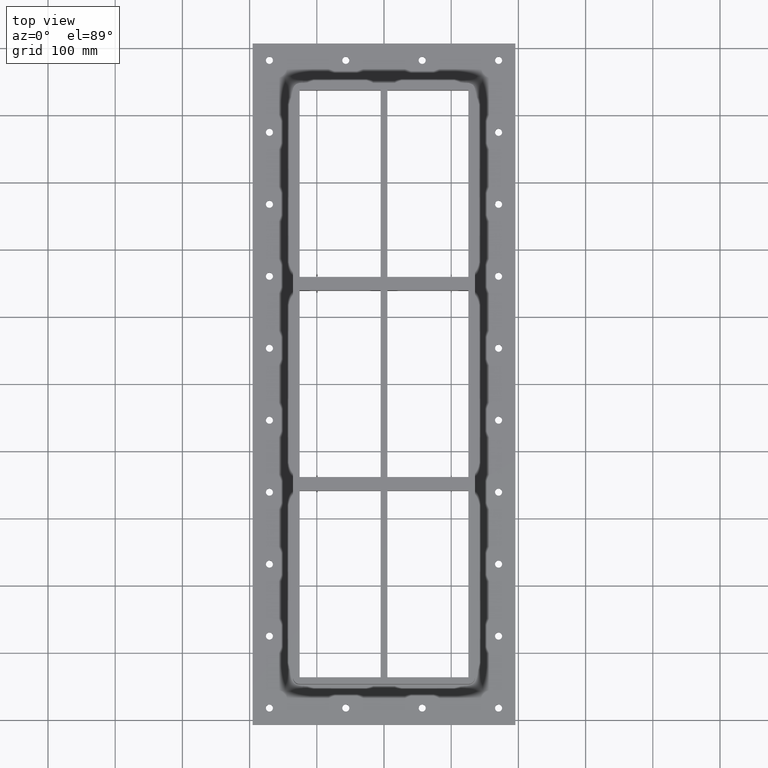
[diagram: clean part render]
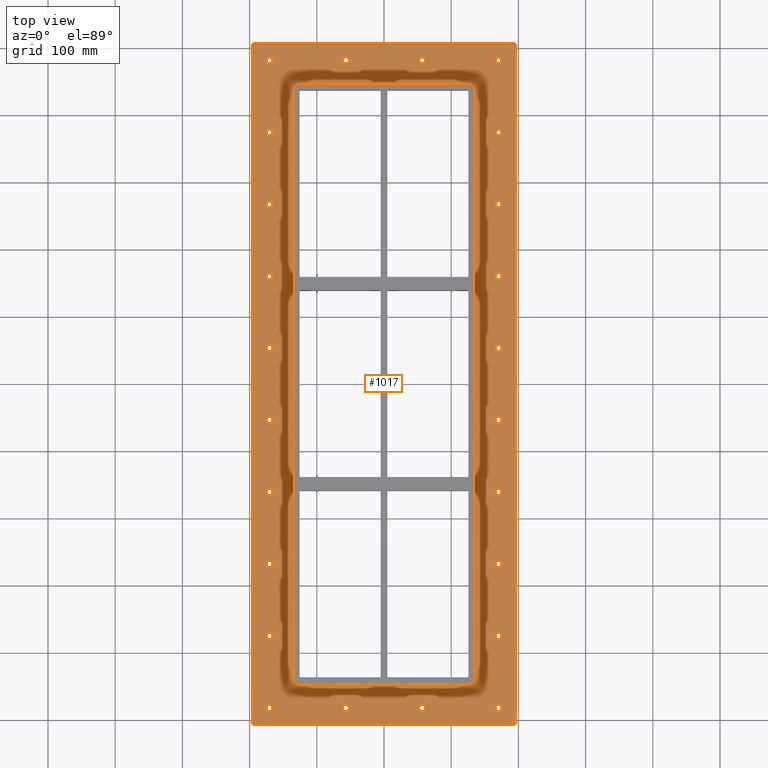
[diagram: same view with one face highlighted and labeled with its STEP entity id]
A machine part, top view. The second image highlights one B-rep face of the part: STEP entity #1017.
In plain terms, the highlighted planar face has unit normal (0, 0, 1).
Its self-contained STEP definition (entity closure, byte-faithful):
#84=CARTESIAN_POINT('',(-51.583333333333279,-482.0,-17.0));
#85=VERTEX_POINT('',#84);
#86=CARTESIAN_POINT('',(-56.833333333333265,-482.0,-17.000000000000028));
#87=DIRECTION('',(0.0,0.0,-1.0));
#88=DIRECTION('',(1.0,0.0,0.0));
#89=AXIS2_PLACEMENT_3D('',#86,#87,#88);
#90=CIRCLE('',#89,5.25);
#91=EDGE_CURVE('',#85,#85,#90,.T.);
#112=CARTESIAN_POINT('',(62.083333333333393,-482.0,-17.0));
#113=VERTEX_POINT('',#112);
#114=CARTESIAN_POINT('',(56.833333333333407,-482.0,-17.000000000000028));
#115=DIRECTION('',(0.0,0.0,-1.0));
#116=DIRECTION('',(1.0,0.0,0.0));
#117=AXIS2_PLACEMENT_3D('',#114,#115,#116);
#118=CIRCLE('',#117,5.25);
#119=EDGE_CURVE('',#113,#113,#118,.T.);
#140=CARTESIAN_POINT('',(62.08333333333325,482.0,-17.0));
#141=VERTEX_POINT('',#140);
#142=CARTESIAN_POINT('',(56.833333333333265,482.0,-17.000000000000028));
#143=DIRECTION('',(0.0,0.0,-1.0));
#144=DIRECTION('',(1.0,0.0,0.0));
#145=AXIS2_PLACEMENT_3D('',#142,#143,#144);
#146=CIRCLE('',#145,5.25);
#147=EDGE_CURVE('',#141,#141,#146,.T.);
#168=CARTESIAN_POINT('',(-51.583333333333421,482.0,-17.0));
#169=VERTEX_POINT('',#168);
#170=CARTESIAN_POINT('',(-56.833333333333407,482.0,-17.000000000000028));
#171=DIRECTION('',(0.0,0.0,-1.0));
#172=DIRECTION('',(1.0,0.0,0.0));
#173=AXIS2_PLACEMENT_3D('',#170,#171,#172);
#174=CIRCLE('',#173,5.25);
#175=EDGE_CURVE('',#169,#169,#174,.T.);
#196=CARTESIAN_POINT('',(175.75000000000003,-374.88888888888891,-17.0));
#197=VERTEX_POINT('',#196);
#198=CARTESIAN_POINT('',(170.50000000000006,-374.88888888888891,-17.000000000000028));
#199=DIRECTION('',(0.0,0.0,-1.0));
#200=DIRECTION('',(1.0,0.0,0.0));
#201=AXIS2_PLACEMENT_3D('',#198,#199,#200);
#202=CIRCLE('',#201,5.25);
#203=EDGE_CURVE('',#197,#197,#202,.T.);
#224=CARTESIAN_POINT('',(175.75000000000003,-267.77777777777789,-17.0));
#225=VERTEX_POINT('',#224);
#226=CARTESIAN_POINT('',(170.50000000000006,-267.77777777777789,-17.000000000000028));
#227=DIRECTION('',(0.0,0.0,-1.0));
#228=DIRECTION('',(1.0,0.0,0.0));
#229=AXIS2_PLACEMENT_3D('',#226,#227,#228);
#230=CIRCLE('',#229,5.25);
#231=EDGE_CURVE('',#225,#225,#230,.T.);
#252=CARTESIAN_POINT('',(175.75,-160.6666666666668,-17.0));
#253=VERTEX_POINT('',#252);
#254=CARTESIAN_POINT('',(170.5,-160.6666666666668,-17.000000000000028));
#255=DIRECTION('',(0.0,0.0,-1.0));
#256=DIRECTION('',(1.0,0.0,0.0));
#257=AXIS2_PLACEMENT_3D('',#254,#255,#256);
#258=CIRCLE('',#257,5.25);
#259=EDGE_CURVE('',#253,#253,#258,.T.);
#280=CARTESIAN_POINT('',(175.75,-53.555555555555578,-17.0));
#281=VERTEX_POINT('',#280);
#282=CARTESIAN_POINT('',(170.5,-53.555555555555578,-17.000000000000028));
#283=DIRECTION('',(0.0,0.0,-1.0));
#284=DIRECTION('',(1.0,0.0,0.0));
#285=AXIS2_PLACEMENT_3D('',#282,#283,#284);
#286=CIRCLE('',#285,5.25);
#287=EDGE_CURVE('',#281,#281,#286,.T.);
#308=CARTESIAN_POINT('',(175.74999999999994,53.555555555555507,-17.0));
#309=VERTEX_POINT('',#308);
#310=CARTESIAN_POINT('',(170.49999999999997,53.555555555555507,-17.000000000000028));
#311=DIRECTION('',(0.0,0.0,-1.0));
#312=DIRECTION('',(1.0,0.0,0.0));
#313=AXIS2_PLACEMENT_3D('',#310,#311,#312);
#314=CIRCLE('',#313,5.25);
#315=EDGE_CURVE('',#309,#309,#314,.T.);
#336=CARTESIAN_POINT('',(175.74999999999994,160.66666666666663,-17.0));
#337=VERTEX_POINT('',#336);
#338=CARTESIAN_POINT('',(170.49999999999997,160.66666666666663,-17.000000000000028));
#339=DIRECTION('',(0.0,0.0,-1.0));
#340=DIRECTION('',(1.0,0.0,0.0));
#341=AXIS2_PLACEMENT_3D('',#338,#339,#340);
#342=CIRCLE('',#341,5.25);
#343=EDGE_CURVE('',#337,#337,#342,.T.);
#364=CARTESIAN_POINT('',(175.74999999999991,267.77777777777783,-17.0));
#365=VERTEX_POINT('',#364);
#366=CARTESIAN_POINT('',(170.49999999999994,267.77777777777783,-17.000000000000028));
#367=DIRECTION('',(0.0,0.0,-1.0));
#368=DIRECTION('',(1.0,0.0,0.0));
#369=AXIS2_PLACEMENT_3D('',#366,#367,#368);
#370=CIRCLE('',#369,5.25);
#371=EDGE_CURVE('',#365,#365,#370,.T.);
#392=CARTESIAN_POINT('',(175.74999999999991,374.88888888888891,-17.0));
#393=VERTEX_POINT('',#392);
#394=CARTESIAN_POINT('',(170.49999999999994,374.88888888888891,-17.000000000000028));
#395=DIRECTION('',(0.0,0.0,-1.0));
#396=DIRECTION('',(1.0,0.0,0.0));
#397=AXIS2_PLACEMENT_3D('',#394,#395,#396);
#398=CIRCLE('',#397,5.25);
#399=EDGE_CURVE('',#393,#393,#398,.T.);
#420=CARTESIAN_POINT('',(-165.25000000000006,374.88888888888891,-17.0));
#421=VERTEX_POINT('',#420);
#422=CARTESIAN_POINT('',(-170.50000000000006,374.88888888888891,-17.000000000000028));
#423=DIRECTION('',(0.0,0.0,-1.0));
#424=DIRECTION('',(1.0,0.0,0.0));
#425=AXIS2_PLACEMENT_3D('',#422,#423,#424);
#426=CIRCLE('',#425,5.25);
#427=EDGE_CURVE('',#421,#421,#426,.T.);
#448=CARTESIAN_POINT('',(-165.25000000000006,267.77777777777789,-17.0));
#449=VERTEX_POINT('',#448);
#450=CARTESIAN_POINT('',(-170.50000000000006,267.77777777777789,-17.000000000000028));
#451=DIRECTION('',(0.0,0.0,-1.0));
#452=DIRECTION('',(1.0,0.0,0.0));
#453=AXIS2_PLACEMENT_3D('',#450,#451,#452);
#454=CIRCLE('',#453,5.25);
#455=EDGE_CURVE('',#449,#449,#454,.T.);
#476=CARTESIAN_POINT('',(-165.25000000000003,160.6666666666668,-17.0));
#477=VERTEX_POINT('',#476);
#478=CARTESIAN_POINT('',(-170.5,160.6666666666668,-17.000000000000028));
#479=DIRECTION('',(0.0,0.0,-1.0));
#480=DIRECTION('',(1.0,0.0,0.0));
#481=AXIS2_PLACEMENT_3D('',#478,#479,#480);
#482=CIRCLE('',#481,5.25);
#483=EDGE_CURVE('',#477,#477,#482,.T.);
#504=CARTESIAN_POINT('',(-165.25000000000003,53.555555555555578,-17.0));
#505=VERTEX_POINT('',#504);
#506=CARTESIAN_POINT('',(-170.5,53.555555555555578,-17.000000000000028));
#507=DIRECTION('',(0.0,0.0,-1.0));
#508=DIRECTION('',(1.0,0.0,0.0));
#509=AXIS2_PLACEMENT_3D('',#506,#507,#508);
#510=CIRCLE('',#509,5.25);
#511=EDGE_CURVE('',#505,#505,#510,.T.);
#532=CARTESIAN_POINT('',(-165.25,-53.555555555555507,-17.0));
#533=VERTEX_POINT('',#532);
#534=CARTESIAN_POINT('',(-170.49999999999997,-53.555555555555507,-17.000000000000028));
#535=DIRECTION('',(0.0,0.0,-1.0));
#536=DIRECTION('',(1.0,0.0,0.0));
#537=AXIS2_PLACEMENT_3D('',#534,#535,#536);
#538=CIRCLE('',#537,5.25);
#539=EDGE_CURVE('',#533,#533,#538,.T.);
#560=CARTESIAN_POINT('',(-165.25,-160.66666666666663,-17.0));
#561=VERTEX_POINT('',#560);
#562=CARTESIAN_POINT('',(-170.49999999999997,-160.66666666666663,-17.000000000000028));
#563=DIRECTION('',(0.0,0.0,-1.0));
#564=DIRECTION('',(1.0,0.0,0.0));
#565=AXIS2_PLACEMENT_3D('',#562,#563,#564);
#566=CIRCLE('',#565,5.25);
#567=EDGE_CURVE('',#561,#561,#566,.T.);
#588=CARTESIAN_POINT('',(-165.24999999999994,-267.77777777777783,-17.0));
#589=VERTEX_POINT('',#588);
#590=CARTESIAN_POINT('',(-170.49999999999994,-267.77777777777783,-17.000000000000028));
#591=DIRECTION('',(0.0,0.0,-1.0));
#592=DIRECTION('',(1.0,0.0,0.0));
#593=AXIS2_PLACEMENT_3D('',#590,#591,#592);
#594=CIRCLE('',#593,5.25);
#595=EDGE_CURVE('',#589,#589,#594,.T.);
#616=CARTESIAN_POINT('',(-165.24999999999994,-374.88888888888891,-17.0));
#617=VERTEX_POINT('',#616);
#618=CARTESIAN_POINT('',(-170.49999999999994,-374.88888888888891,-17.000000000000028));
#619=DIRECTION('',(0.0,0.0,-1.0));
#620=DIRECTION('',(1.0,0.0,0.0));
#621=AXIS2_PLACEMENT_3D('',#618,#619,#620);
#622=CIRCLE('',#621,5.25);
#623=EDGE_CURVE('',#617,#617,#622,.T.);
#644=CARTESIAN_POINT('',(-165.25000000000009,482.0,-17.0));
#645=VERTEX_POINT('',#644);
#646=CARTESIAN_POINT('',(-170.50000000000009,482.0,-17.000000000000028));
#647=DIRECTION('',(0.0,0.0,-1.0));
#648=DIRECTION('',(1.0,0.0,0.0));
#649=AXIS2_PLACEMENT_3D('',#646,#647,#648);
#650=CIRCLE('',#649,5.25);
#651=EDGE_CURVE('',#645,#645,#650,.T.);
#672=CARTESIAN_POINT('',(175.74999999999991,482.0,-17.0));
#673=VERTEX_POINT('',#672);
#674=CARTESIAN_POINT('',(170.49999999999994,482.0,-17.000000000000028));
#675=DIRECTION('',(0.0,0.0,-1.0));
#676=DIRECTION('',(1.0,0.0,0.0));
#677=AXIS2_PLACEMENT_3D('',#674,#675,#676);
#678=CIRCLE('',#677,5.25);
#679=EDGE_CURVE('',#673,#673,#678,.T.);
#700=CARTESIAN_POINT('',(175.75000000000006,-482.0,-17.0));
#701=VERTEX_POINT('',#700);
#702=CARTESIAN_POINT('',(170.50000000000009,-482.0,-17.000000000000028));
#703=DIRECTION('',(0.0,0.0,-1.0));
#704=DIRECTION('',(1.0,0.0,0.0));
#705=AXIS2_PLACEMENT_3D('',#702,#703,#704);
#706=CIRCLE('',#705,5.25);
#707=EDGE_CURVE('',#701,#701,#706,.T.);
#728=CARTESIAN_POINT('',(-165.24999999999994,-482.0,-17.0));
#729=VERTEX_POINT('',#728);
#730=CARTESIAN_POINT('',(-170.49999999999994,-482.0,-17.000000000000028));
#731=DIRECTION('',(0.0,0.0,-1.0));
#732=DIRECTION('',(1.0,0.0,0.0));
#733=AXIS2_PLACEMENT_3D('',#730,#731,#732);
#734=CIRCLE('',#733,5.25);
#735=EDGE_CURVE('',#729,#729,#734,.T.);
#755=CARTESIAN_POINT('',(-195.49999999999994,-507.0,-17.0));
#756=VERTEX_POINT('',#755);
#763=CARTESIAN_POINT('',(-195.50000000000009,507.0,-17.0));
#764=VERTEX_POINT('',#763);
#765=CARTESIAN_POINT('',(-195.50000000000009,507.0,-17.0));
#766=DIRECTION('',(0.0,-1.0,0.0));
#767=VECTOR('',#766,1014.0);
#768=LINE('',#765,#767);
#769=EDGE_CURVE('',#764,#756,#768,.T.);
#794=CARTESIAN_POINT('',(195.49999999999994,507.0,-17.0));
#795=VERTEX_POINT('',#794);
#796=CARTESIAN_POINT('',(195.49999999999991,507.0,-17.0));
#797=DIRECTION('',(-1.0,0.0,0.0));
#798=VECTOR('',#797,391.0);
#799=LINE('',#796,#798);
#800=EDGE_CURVE('',#795,#764,#799,.T.);
#825=CARTESIAN_POINT('',(195.50000000000009,-507.0,-17.0));
#826=VERTEX_POINT('',#825);
#827=CARTESIAN_POINT('',(195.50000000000009,-507.0,-17.0));
#828=DIRECTION('',(0.0,1.0,0.0));
#829=VECTOR('',#828,1014.0);
#830=LINE('',#827,#829);
#831=EDGE_CURVE('',#826,#795,#830,.T.);
#854=CARTESIAN_POINT('',(-195.49999999999991,-507.0,-17.0));
#855=DIRECTION('',(1.0,0.0,0.0));
#856=VECTOR('',#855,391.0);
#857=LINE('',#854,#856);
#858=EDGE_CURVE('',#756,#826,#857,.T.);
#864=CARTESIAN_POINT('',(0.0,0.0,-17.0));
#865=DIRECTION('',(0.0,0.0,1.0));
#866=DIRECTION('',(1.0,0.0,0.0));
#867=AXIS2_PLACEMENT_3D('',#864,#865,#866);
#868=PLANE('',#867);
#869=ORIENTED_EDGE('',*,*,#858,.T.);
#870=ORIENTED_EDGE('',*,*,#831,.T.);
#871=ORIENTED_EDGE('',*,*,#800,.T.);
#872=ORIENTED_EDGE('',*,*,#769,.T.);
#873=EDGE_LOOP('',(#869,#870,#871,#872));
#874=FACE_OUTER_BOUND('',#873,.T.);
#875=ORIENTED_EDGE('',*,*,#91,.T.);
#876=EDGE_LOOP('',(#875));
#877=FACE_BOUND('',#876,.T.);
#878=ORIENTED_EDGE('',*,*,#119,.T.);
#879=EDGE_LOOP('',(#878));
#880=FACE_BOUND('',#879,.T.);
#881=ORIENTED_EDGE('',*,*,#147,.T.);
#882=EDGE_LOOP('',(#881));
#883=FACE_BOUND('',#882,.T.);
#884=ORIENTED_EDGE('',*,*,#175,.T.);
#885=EDGE_LOOP('',(#884));
#886=FACE_BOUND('',#885,.T.);
#887=ORIENTED_EDGE('',*,*,#203,.T.);
#888=EDGE_LOOP('',(#887));
#889=FACE_BOUND('',#888,.T.);
#890=ORIENTED_EDGE('',*,*,#231,.T.);
#891=EDGE_LOOP('',(#890));
#892=FACE_BOUND('',#891,.T.);
#893=ORIENTED_EDGE('',*,*,#259,.T.);
#894=EDGE_LOOP('',(#893));
#895=FACE_BOUND('',#894,.T.);
#896=ORIENTED_EDGE('',*,*,#287,.T.);
#897=EDGE_LOOP('',(#896));
#898=FACE_BOUND('',#897,.T.);
#899=ORIENTED_EDGE('',*,*,#315,.T.);
#900=EDGE_LOOP('',(#899));
#901=FACE_BOUND('',#900,.T.);
#902=ORIENTED_EDGE('',*,*,#343,.T.);
#903=EDGE_LOOP('',(#902));
#904=FACE_BOUND('',#903,.T.);
#905=ORIENTED_EDGE('',*,*,#371,.T.);
#906=EDGE_LOOP('',(#905));
#907=FACE_BOUND('',#906,.T.);
#908=ORIENTED_EDGE('',*,*,#399,.T.);
#909=EDGE_LOOP('',(#908));
#910=FACE_BOUND('',#909,.T.);
#911=ORIENTED_EDGE('',*,*,#427,.T.);
#912=EDGE_LOOP('',(#911));
#913=FACE_BOUND('',#912,.T.);
#914=ORIENTED_EDGE('',*,*,#455,.T.);
#915=EDGE_LOOP('',(#914));
#916=FACE_BOUND('',#915,.T.);
#917=ORIENTED_EDGE('',*,*,#483,.T.);
#918=EDGE_LOOP('',(#917));
#919=FACE_BOUND('',#918,.T.);
#920=ORIENTED_EDGE('',*,*,#511,.T.);
#921=EDGE_LOOP('',(#920));
#922=FACE_BOUND('',#921,.T.);
#923=ORIENTED_EDGE('',*,*,#539,.T.);
#924=EDGE_LOOP('',(#923));
#925=FACE_BOUND('',#924,.T.);
#926=ORIENTED_EDGE('',*,*,#567,.T.);
#927=EDGE_LOOP('',(#926));
#928=FACE_BOUND('',#927,.T.);
#929=ORIENTED_EDGE('',*,*,#595,.T.);
#930=EDGE_LOOP('',(#929));
#931=FACE_BOUND('',#930,.T.);
#932=ORIENTED_EDGE('',*,*,#623,.T.);
#933=EDGE_LOOP('',(#932));
#934=FACE_BOUND('',#933,.T.);
#935=ORIENTED_EDGE('',*,*,#651,.T.);
#936=EDGE_LOOP('',(#935));
#937=FACE_BOUND('',#936,.T.);
#938=ORIENTED_EDGE('',*,*,#679,.T.);
#939=EDGE_LOOP('',(#938));
#940=FACE_BOUND('',#939,.T.);
#941=ORIENTED_EDGE('',*,*,#707,.T.);
#942=EDGE_LOOP('',(#941));
#943=FACE_BOUND('',#942,.T.);
#944=ORIENTED_EDGE('',*,*,#735,.T.);
#945=EDGE_LOOP('',(#944));
#946=FACE_BOUND('',#945,.T.);
#947=CARTESIAN_POINT('',(135.49999999999994,437.0,-17.0));
#948=VERTEX_POINT('',#947);
#949=CARTESIAN_POINT('',(125.49999999999997,447.0,-17.0));
#950=VERTEX_POINT('',#949);
#951=CARTESIAN_POINT('',(125.4999999999999,437.00000000000011,-17.0));
#952=DIRECTION('',(0.0,0.0,1.0));
#953=DIRECTION('',(0.707106781186547,0.707106781186547,0.0));
#954=AXIS2_PLACEMENT_3D('',#951,#952,#953);
#955=CIRCLE('',#954,9.999999999999998);
#956=EDGE_CURVE('',#948,#950,#955,.T.);
#957=ORIENTED_EDGE('',*,*,#956,.F.);
#958=CARTESIAN_POINT('',(135.50000000000009,-437.0,-17.0));
#959=VERTEX_POINT('',#958);
#960=CARTESIAN_POINT('',(135.50000000000003,-437.0,-17.0));
#961=DIRECTION('',(0.0,1.0,0.0));
#962=VECTOR('',#961,874.0);
#963=LINE('',#960,#962);
#964=EDGE_CURVE('',#959,#948,#963,.T.);
#965=ORIENTED_EDGE('',*,*,#964,.F.);
#966=CARTESIAN_POINT('',(125.50000000000009,-447.0,-17.0));
#967=VERTEX_POINT('',#966);
#968=CARTESIAN_POINT('',(125.50000000000004,-436.99999999999989,-17.0));
#969=DIRECTION('',(0.0,0.0,1.0));
#970=DIRECTION('',(0.707106781186547,-0.707106781186547,0.0));
#971=AXIS2_PLACEMENT_3D('',#968,#969,#970);
#972=CIRCLE('',#971,9.999999999999998);
#973=EDGE_CURVE('',#967,#959,#972,.T.);
#974=ORIENTED_EDGE('',*,*,#973,.F.);
#975=CARTESIAN_POINT('',(-125.49999999999997,-447.0,-17.0));
#976=VERTEX_POINT('',#975);
#977=CARTESIAN_POINT('',(-125.49999999999997,-446.99999999999989,-17.0));
#978=DIRECTION('',(1.0,0.0,0.0));
#979=VECTOR('',#978,251.00000000000006);
#980=LINE('',#977,#979);
#981=EDGE_CURVE('',#976,#967,#980,.T.);
#982=ORIENTED_EDGE('',*,*,#981,.F.);
#983=CARTESIAN_POINT('',(-135.49999999999994,-437.0,-17.0));
#984=VERTEX_POINT('',#983);
#985=CARTESIAN_POINT('',(-125.49999999999983,-436.99999999999989,-17.0));
#986=DIRECTION('',(0.0,0.0,1.0));
#987=DIRECTION('',(-0.707106781186547,-0.707106781186547,0.0));
#988=AXIS2_PLACEMENT_3D('',#985,#986,#987);
#989=CIRCLE('',#988,9.999999999999998);
#990=EDGE_CURVE('',#984,#976,#989,.T.);
#991=ORIENTED_EDGE('',*,*,#990,.F.);
#992=CARTESIAN_POINT('',(-135.50000000000009,437.0,-17.0));
#993=VERTEX_POINT('',#992);
#994=CARTESIAN_POINT('',(-135.50000000000011,437.0,-17.0));
#995=DIRECTION('',(0.0,-1.0,0.0));
#996=VECTOR('',#995,874.00000000000011);
#997=LINE('',#994,#996);
#998=EDGE_CURVE('',#993,#984,#997,.T.);
#999=ORIENTED_EDGE('',*,*,#998,.F.);
#1000=CARTESIAN_POINT('',(-125.50000000000004,447.0,-17.0));
#1001=VERTEX_POINT('',#1000);
#1002=CARTESIAN_POINT('',(-125.50000000000011,437.00000000000011,-17.0));
#1003=DIRECTION('',(0.0,0.0,1.0));
#1004=DIRECTION('',(-0.707106781186547,0.707106781186547,0.0));
#1005=AXIS2_PLACEMENT_3D('',#1002,#1003,#1004);
#1006=CIRCLE('',#1005,9.999999999999998);
#1007=EDGE_CURVE('',#1001,#993,#1006,.T.);
#1008=ORIENTED_EDGE('',*,*,#1007,.F.);
#1009=CARTESIAN_POINT('',(125.49999999999997,447.00000000000011,-17.0));
#1010=DIRECTION('',(-1.0,0.0,0.0));
#1011=VECTOR('',#1010,251.00000000000003);
#1012=LINE('',#1009,#1011);
#1013=EDGE_CURVE('',#950,#1001,#1012,.T.);
#1014=ORIENTED_EDGE('',*,*,#1013,.F.);
#1015=EDGE_LOOP('',(#957,#965,#974,#982,#991,#999,#1008,#1014));
#1016=FACE_BOUND('',#1015,.T.);
#1017=ADVANCED_FACE('',(#874,#877,#880,#883,#886,#889,#892,#895,#898,#901,#904,#907,#910,#913,#916,#919,#922,#925,#928,#931,#934,#937,#940,#943,#946,#1016),#868,.T.);